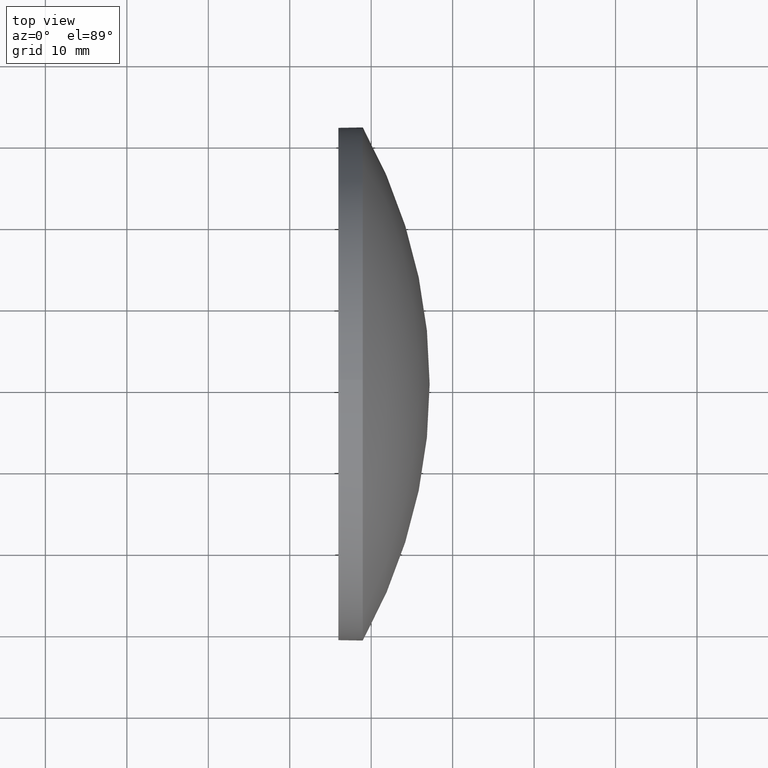
[diagram: clean part render]
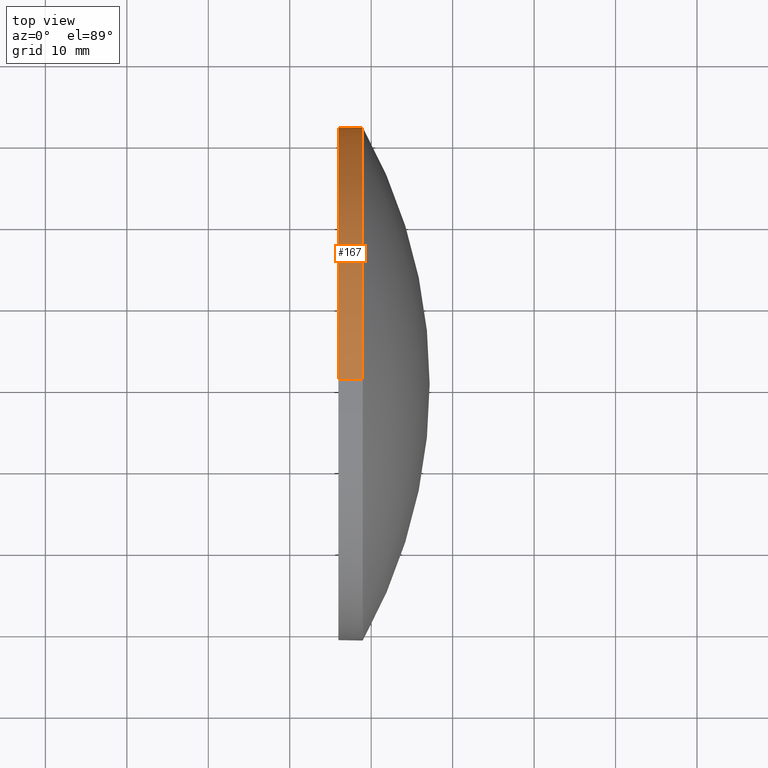
[diagram: same view with one face highlighted and labeled with its STEP entity id]
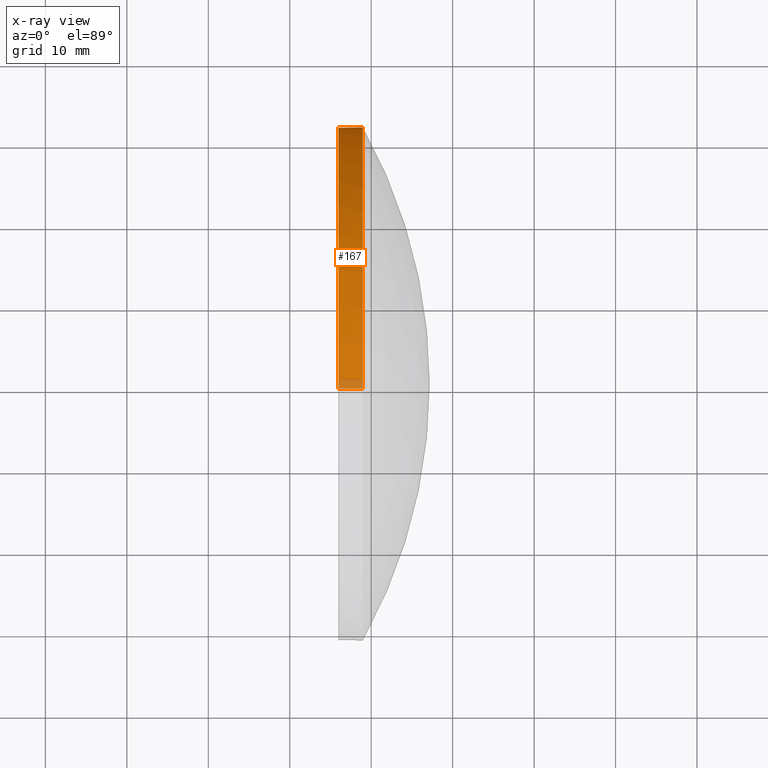
[diagram: x-ray of the same camera — body ghosted, the highlighted face saturated]
A machine part, top view. The second image highlights one B-rep face of the part: STEP entity #167.
The next image is the same camera in x-ray: the body ghosted, the highlighted face saturated — about 3% of this face is hidden behind the body in this view.
In plain terms, the highlighted cylindrical surface (partial cylindrical patch) has radius 31.5 mm, axis along (1, -0, -0).
Its self-contained STEP definition (entity closure, byte-faithful):
#2 = CIRCLE ( 'NONE', #41, 31.50000000000000000 ) ;
#20 = VERTEX_POINT ( 'NONE', #116 ) ;
#21 = CARTESIAN_POINT ( 'NONE',  ( 228.9653141997173700, 130.4671098528244200, -31.50000000000000000 ) ) ;
#22 = ORIENTED_EDGE ( 'NONE', *, *, #62, .F. ) ;
#31 = CARTESIAN_POINT ( 'NONE',  ( 237.1753141997173800, 130.4671098528244200, -31.50000000000000000 ) ) ;
#34 = DIRECTION ( 'NONE',  ( 1.000000000000000000, -0.0000000000000000000, -0.0000000000000000000 ) ) ;
#41 = AXIS2_PLACEMENT_3D ( 'NONE', #176, #71, #145 ) ;
#49 = ORIENTED_EDGE ( 'NONE', *, *, #76, .F. ) ;
#52 = VERTEX_POINT ( 'NONE', #21 ) ;
#53 = CYLINDRICAL_SURFACE ( 'NONE', #101, 31.50000000000000000 ) ;
#54 = DIRECTION ( 'NONE',  ( 1.000000000000000000, -0.0000000000000000000, -0.0000000000000000000 ) ) ;
#58 = EDGE_CURVE ( 'NONE', #147, #148, #174, .T. ) ;
#60 = DIRECTION ( 'NONE',  ( 0.0000000000000000000, 0.0000000000000000000, -1.000000000000000000 ) ) ;
#62 = EDGE_CURVE ( 'NONE', #147, #52, #90, .T. ) ;
#65 = DIRECTION ( 'NONE',  ( 0.0000000000000000000, 0.0000000000000000000, -1.000000000000000000 ) ) ;
#67 = CARTESIAN_POINT ( 'NONE',  ( 237.1753141997173800, 130.4671098528244200, 31.50000000000000000 ) ) ;
#71 = DIRECTION ( 'NONE',  ( 1.000000000000000000, -0.0000000000000000000, -0.0000000000000000000 ) ) ;
#72 = CARTESIAN_POINT ( 'NONE',  ( 225.9653141997173400, 130.4671098528244200, -31.50000000000000000 ) ) ;
#76 = EDGE_CURVE ( 'NONE', #52, #114, #111, .T. ) ;
#79 = ORIENTED_EDGE ( 'NONE', *, *, #113, .F. ) ;
#85 = DIRECTION ( 'NONE',  ( 1.000000000000000000, -0.0000000000000000000, -0.0000000000000000000 ) ) ;
#87 = EDGE_CURVE ( 'NONE', #148, #20, #98, .T. ) ;
#90 = LINE ( 'NONE', #31, #135 ) ;
#92 = CARTESIAN_POINT ( 'NONE',  ( 228.9653141997173700, 161.9671098528244200, -3.857637417314163500E-015 ) ) ;
#94 = FACE_OUTER_BOUND ( 'NONE', #183, .T. ) ;
#98 = LINE ( 'NONE', #67, #142 ) ;
#101 = AXIS2_PLACEMENT_3D ( 'NONE', #143, #85, #102 ) ;
#102 = DIRECTION ( 'NONE',  ( 0.0000000000000000000, 0.0000000000000000000, -1.000000000000000000 ) ) ;
#104 = DIRECTION ( 'NONE',  ( 1.000000000000000000, -0.0000000000000000000, -0.0000000000000000000 ) ) ;
#111 = CIRCLE ( 'NONE', #137, 31.50000000000000000 ) ;
#113 = EDGE_CURVE ( 'NONE', #114, #20, #2, .T. ) ;
#114 = VERTEX_POINT ( 'NONE', #92 ) ;
#116 = CARTESIAN_POINT ( 'NONE',  ( 228.9653141997173700, 130.4671098528244200, 31.50000000000000000 ) ) ;
#118 = DIRECTION ( 'NONE',  ( 1.000000000000000000, -0.0000000000000000000, -0.0000000000000000000 ) ) ;
#123 = CARTESIAN_POINT ( 'NONE',  ( 225.9653141997173400, 130.4671098528244200, 31.50000000000000000 ) ) ;
#128 = ORIENTED_EDGE ( 'NONE', *, *, #58, .T. ) ;
#135 = VECTOR ( 'NONE', #54, 1000.000000000000000 ) ;
#137 = AXIS2_PLACEMENT_3D ( 'NONE', #181, #34, #60 ) ;
#142 = VECTOR ( 'NONE', #104, 1000.000000000000000 ) ;
#143 = CARTESIAN_POINT ( 'NONE',  ( 237.1753141997173800, 130.4671098528244200, 0.0000000000000000000 ) ) ;
#145 = DIRECTION ( 'NONE',  ( 0.0000000000000000000, 0.0000000000000000000, -1.000000000000000000 ) ) ;
#147 = VERTEX_POINT ( 'NONE', #72 ) ;
#148 = VERTEX_POINT ( 'NONE', #123 ) ;
#151 = CARTESIAN_POINT ( 'NONE',  ( 225.9653141997173400, 130.4671098528244200, 0.0000000000000000000 ) ) ;
#155 = ORIENTED_EDGE ( 'NONE', *, *, #87, .T. ) ;
#167 = ADVANCED_FACE ( 'NONE', ( #94 ), #53, .T. ) ;
#170 = AXIS2_PLACEMENT_3D ( 'NONE', #151, #118, #65 ) ;
#174 = CIRCLE ( 'NONE', #170, 31.50000000000000000 ) ;
#176 = CARTESIAN_POINT ( 'NONE',  ( 228.9653141997173700, 130.4671098528244200, 0.0000000000000000000 ) ) ;
#181 = CARTESIAN_POINT ( 'NONE',  ( 228.9653141997173700, 130.4671098528244200, 0.0000000000000000000 ) ) ;
#183 = EDGE_LOOP ( 'NONE', ( #128, #155, #79, #49, #22 ) ) ;